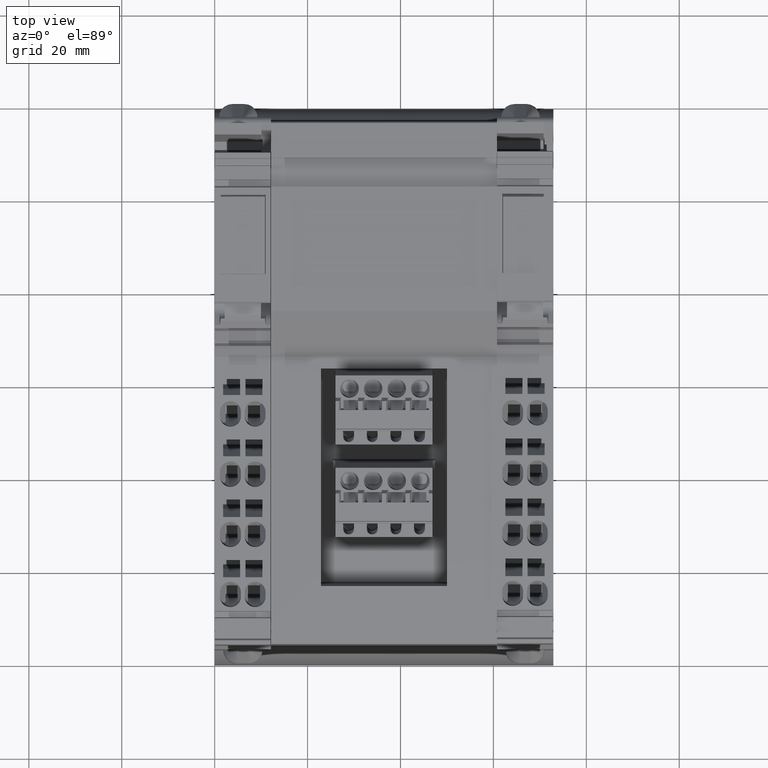
[diagram: clean part render]
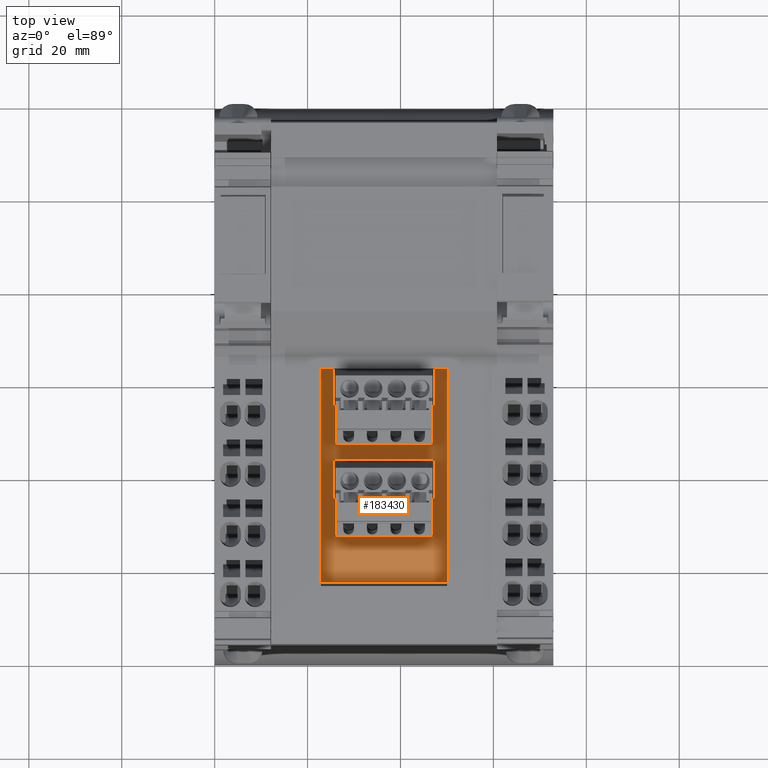
[diagram: same view with one face highlighted and labeled with its STEP entity id]
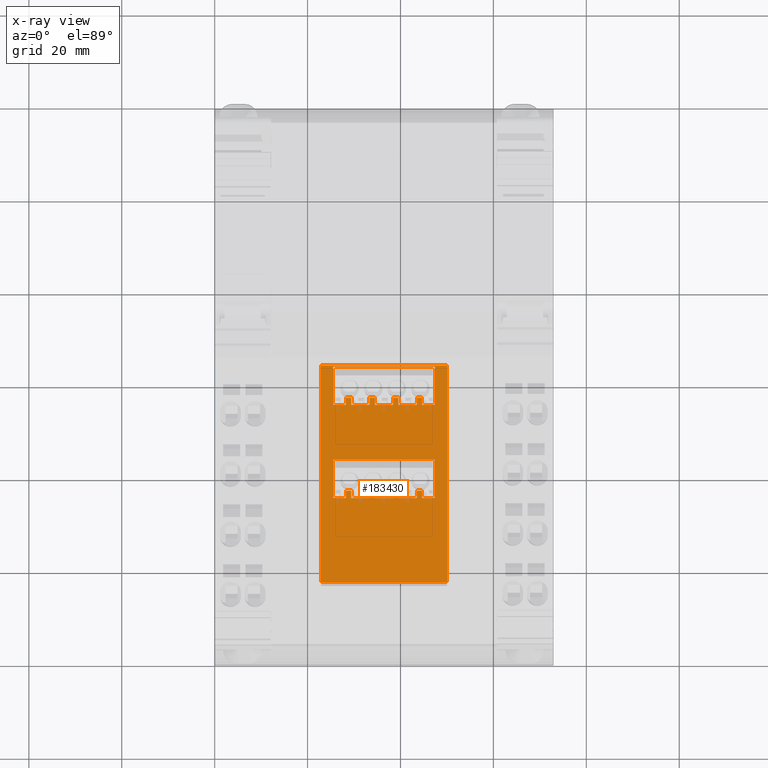
[diagram: x-ray of the same camera — body ghosted, the highlighted face saturated]
A machine part, top view. The second image highlights one B-rep face of the part: STEP entity #183430.
The next image is the same camera in x-ray: the body ghosted, the highlighted face saturated — about 1% of this face is hidden behind the body in this view.
In plain terms, the highlighted planar face has unit normal (-0, -0.1279, 0.9918).
Its self-contained STEP definition (entity closure, byte-faithful):
#167700=CARTESIAN_POINT('',(-64.6547814480056,-66.7761858057865,
15.4444377541362));
#167710=VERTEX_POINT('',#167700);
#167860=CARTESIAN_POINT('',(-64.6547814480056,-66.7761858057865,
19.3955624258869));
#167870=VERTEX_POINT('',#167860);
#167900=CARTESIAN_POINT('',(-64.6547814480056,-66.7761858057865,32.55));
#167910=DIRECTION('',(8.08889870633454E-16,1.04353088858576E-16,1.));
#167920=VECTOR('',#167910,1.);
#167930=LINE('',#167900,#167920);
#167940=EDGE_CURVE('',#167710,#167870,#167930,.T.);
#168110=CARTESIAN_POINT('',(0.0062482952954781,-58.4344097155437,
25.64943290838));
#168120=DIRECTION('',(0.991780710985145,0.127947430693632,
0.000690142520834572));
#168130=VECTOR('',#168120,1.);
#168140=LINE('',#168110,#168130);
#168150=CARTESIAN_POINT('',(-66.2168417217645,-66.9777037385335,
25.6033507757315));
#168160=VERTEX_POINT('',#168150);
#168170=CARTESIAN_POINT('',(-64.6547814480056,-66.7761858057865,
25.6044377541362));
#168180=VERTEX_POINT('',#168170);
#168190=EDGE_CURVE('',#168160,#168180,#168140,.T.);
#168580=CARTESIAN_POINT('',(0.0062482952954781,-58.4344097155437,
20.56943290838));
#168590=DIRECTION('',(0.991780710985145,0.127947430693632,
0.000690142520834572));
#168600=VECTOR('',#168590,1.);
#168610=LINE('',#168580,#168600);
#168620=CARTESIAN_POINT('',(-66.2168417217646,-66.9777037385335,
20.5233507757315));
#168630=VERTEX_POINT('',#168620);
#168640=CARTESIAN_POINT('',(-64.6547814480056,-66.7761858057865,
20.5244377541362));
#168650=VERTEX_POINT('',#168640);
#168660=EDGE_CURVE('',#168630,#168650,#168610,.T.);
#169190=CARTESIAN_POINT('',(-66.2168417217645,-66.9777037385335,
14.3166494042916));
#169200=VERTEX_POINT('',#169190);
#169230=CARTESIAN_POINT('',(0.0062482952954781,-58.4344097155437,
14.270567271643));
#169240=DIRECTION('',(-0.991780710985145,-0.127947430693632,
0.000690142520836271));
#169250=VECTOR('',#169240,1.);
#169260=LINE('',#169230,#169250);
#169270=CARTESIAN_POINT('',(-64.6547814480056,-66.7761858057865,
14.3155624258869));
#169280=VERTEX_POINT('',#169270);
#169290=EDGE_CURVE('',#169280,#169200,#169260,.T.);
#169770=CARTESIAN_POINT('',(-72.93618035968,-67.84455071908,
11.5600000900115));
#169780=VERTEX_POINT('',#169770);
#169810=CARTESIAN_POINT('',(-72.93618035968,-67.84455071908,32.55));
#169820=DIRECTION('',(8.08889870633454E-16,1.04353088858576E-16,1.));
#169830=VECTOR('',#169820,1.);
#169840=LINE('',#169810,#169830);
#169850=CARTESIAN_POINT('',(-72.93618035968,-67.84455071908,
33.4400000900115));
#169860=VERTEX_POINT('',#169850);
#169870=EDGE_CURVE('',#169780,#169860,#169840,.T.);
#170300=CARTESIAN_POINT('',(-66.2168417217645,-66.9777037385335,
19.3966494042916));
#170310=VERTEX_POINT('',#170300);
#170340=CARTESIAN_POINT('',(0.0062482952954781,-58.4344097155437,
19.350567271643));
#170350=DIRECTION('',(-0.991780710985145,-0.127947430693632,
0.000690142520836271));
#170360=VECTOR('',#170350,1.);
#170370=LINE('',#170340,#170360);
#170380=EDGE_CURVE('',#167870,#170310,#170370,.T.);
#172110=CARTESIAN_POINT('',(0.0062482952954781,-58.4344097155437,
33.4400000900115));
#172120=DIRECTION('',(0.991780947176169,0.127947461164112,
-7.91033905045424E-16));
#172130=VECTOR('',#172120,1.);
#172140=LINE('',#172110,#172130);
#172150=CARTESIAN_POINT('',(-64.6547814480056,-66.7761858057865,
33.4400000900115));
#172160=VERTEX_POINT('',#172150);
#172170=EDGE_CURVE('',#169860,#172160,#172140,.T.);
#172540=CARTESIAN_POINT('',(-66.2168417217645,-66.9777037385335,
24.4766494042916));
#172550=VERTEX_POINT('',#172540);
#172580=CARTESIAN_POINT('',(0.0062482952954781,-58.4344097155437,
24.430567271643));
#172590=DIRECTION('',(-0.991780710985145,-0.127947430693632,
0.000690142520836271));
#172600=VECTOR('',#172590,1.);
#172610=LINE('',#172580,#172600);
#172620=CARTESIAN_POINT('',(-64.6547814480056,-66.7761858057865,
24.4755624258869));
#172630=VERTEX_POINT('',#172620);
#172640=EDGE_CURVE('',#172630,#172550,#172610,.T.);
#173530=CARTESIAN_POINT('',(0.0062482952954781,-58.4344097155437,
30.72943290838));
#173540=DIRECTION('',(0.991780710985145,0.127947430693632,
0.000690142520834572));
#173550=VECTOR('',#173540,1.);
#173560=LINE('',#173530,#173550);
#173570=CARTESIAN_POINT('',(-66.2168417217645,-66.9777037385335,
30.6833507757315));
#173580=VERTEX_POINT('',#173570);
#173590=CARTESIAN_POINT('',(-64.6547814480056,-66.7761858057865,
30.6844377541362));
#173600=VERTEX_POINT('',#173590);
#173610=EDGE_CURVE('',#173580,#173600,#173560,.T.);
#173970=CARTESIAN_POINT('',(-64.6547814480056,-66.7761858057865,
11.5600000900115));
#173980=VERTEX_POINT('',#173970);
#174010=CARTESIAN_POINT('',(0.0062482952954781,-58.4344097155437,
11.5600000900115));
#174020=DIRECTION('',(0.991780947176169,0.127947461164112,
-7.91033905045424E-16));
#174030=VECTOR('',#174020,1.);
#174040=LINE('',#174010,#174030);
#174050=EDGE_CURVE('',#169780,#173980,#174040,.T.);
#174170=EDGE_CURVE('',#173980,#169280,#167930,.T.);
#174320=CARTESIAN_POINT('',(-64.6547814480056,-66.7761858057865,
29.5555624258869));
#174330=VERTEX_POINT('',#174320);
#174340=EDGE_CURVE('',#168180,#174330,#167930,.T.);
#175640=EDGE_CURVE('',#168650,#172630,#167930,.T.);
#175980=EDGE_CURVE('',#173600,#172160,#167930,.T.);
#176710=CARTESIAN_POINT('',(-66.2168417217645,-66.9777037385335,32.55));
#176720=DIRECTION('',(-8.08889870633454E-16,-1.04353088858576E-16,-1.));
#176730=VECTOR('',#176720,1.);
#176740=LINE('',#176710,#176730);
#176750=CARTESIAN_POINT('',(-66.2168417217645,-66.9777037385335,
29.5566494042916));
#176760=VERTEX_POINT('',#176750);
#176770=EDGE_CURVE('',#173580,#176760,#176740,.T.);
#176870=EDGE_CURVE('',#168160,#172550,#176740,.T.);
#176970=EDGE_CURVE('',#168630,#170310,#176740,.T.);
#177120=CARTESIAN_POINT('',(-66.2168417217646,-66.9777037385335,
15.4433507757315));
#177130=VERTEX_POINT('',#177120);
#177160=EDGE_CURVE('',#177130,#169200,#176740,.T.);
#177620=CARTESIAN_POINT('',(0.0062482952954781,-58.4344097155437,
29.510567271643));
#177630=DIRECTION('',(-0.991780710985145,-0.127947430693632,
0.000690142520836271));
#177640=VECTOR('',#177630,1.);
#177650=LINE('',#177620,#177640);
#177660=EDGE_CURVE('',#174330,#176760,#177650,.T.);
#178230=CARTESIAN_POINT('',(-73.1442997239359,-67.8713997368509,
8.94601255730046));
#178240=VERTEX_POINT('',#178230);
#178270=CARTESIAN_POINT('',(0.0062482952954781,-58.4344097155437,
8.94601255730046));
#178280=DIRECTION('',(0.991780947176169,0.127947461164112,
1.03154561898934E-45));
#178290=VECTOR('',#178280,1.);
#178300=LINE('',#178270,#178290);
#178310=CARTESIAN_POINT('',(-26.6316494272199,-61.87090584309,
8.94601255730046));
#178320=VERTEX_POINT('',#178310);
#178330=EDGE_CURVE('',#178240,#178320,#178300,.T.);
#178950=CARTESIAN_POINT('',(-26.6316493774359,-61.8709058366675,32.55));
#178960=DIRECTION('',(4.43421172533961E-19,5.72047823802933E-20,1.));
#178970=VECTOR('',#178960,1.);
#178980=LINE('',#178950,#178970);
#178990=CARTESIAN_POINT('',(-26.6316493774359,-61.8709058366675,
36.0539874997528));
#179000=VERTEX_POINT('',#178990);
#179010=EDGE_CURVE('',#178320,#179000,#178980,.T.);
#179320=CARTESIAN_POINT('',(0.0062482952954781,-58.4344097155437,
15.48943290838));
#179330=DIRECTION('',(0.991780710985145,0.127947430693632,
0.000690142520834572));
#179340=VECTOR('',#179330,1.);
#179350=LINE('',#179320,#179340);
#179360=EDGE_CURVE('',#177130,#167710,#179350,.T.);
#179570=CARTESIAN_POINT('',(0.0062482952954781,-58.4344097155437,
36.0539874997528));
#179580=DIRECTION('',(0.991780947176169,0.127947461164112,
1.03154561898934E-45));
#179590=VECTOR('',#179580,1.);
#179600=LINE('',#179570,#179590);
#179610=CARTESIAN_POINT('',(-73.1442997239359,-67.8713997368509,
36.0539874997528));
#179620=VERTEX_POINT('',#179610);
#179630=EDGE_CURVE('',#179620,#179000,#179600,.T.);
#181600=CARTESIAN_POINT('',(-73.1442997239358,-67.8713997368509,32.55));
#181610=DIRECTION('',(-4.43421172533961E-19,-5.72047823802934E-20,-1.));
#181620=VECTOR('',#181610,1.);
#181630=LINE('',#181600,#181620);
#181640=EDGE_CURVE('',#179620,#178240,#181630,.T.);
#181760=CARTESIAN_POINT('',(-50.2846266335762,-64.9223239925742,
22.5000000000113));
#181770=DIRECTION('',(0.127947461164112,-0.991780947176169,
-4.81482486095478E-35));
#181780=DIRECTION('',(3.7631265342413E-34,3.77064121249237E-62,1.));
#181790=AXIS2_PLACEMENT_3D('',#181760,#181770,#181780);
#181800=PLANE('',#181790);
#181810=CARTESIAN_POINT('',(-44.6703277868989,-64.1980357455633,32.55));
#181820=DIRECTION('',(-8.08889870633454E-16,-1.04353088858576E-16,-1.));
#181830=VECTOR('',#181820,1.);
#181840=LINE('',#181810,#181830);
#181850=CARTESIAN_POINT('',(-44.670327786899,-64.1980357455633,
24.461656003757));
#181860=VERTEX_POINT('',#181850);
#181870=CARTESIAN_POINT('',(-44.670327786899,-64.1980357455633,
20.538344176266));
#181880=VERTEX_POINT('',#181870);
#181890=EDGE_CURVE('',#181860,#181880,#181840,.T.);
#181900=ORIENTED_EDGE('',*,*,#181890,.T.);
#181910=CARTESIAN_POINT('',(0.0062482952954781,-58.4344097155437,
24.430567271643));
#181920=DIRECTION('',(-0.991780710985145,-0.127947430693632,
0.000690142520836271));
#181930=VECTOR('',#181920,1.);
#181940=LINE('',#181910,#181930);
#181950=CARTESIAN_POINT('',(-46.2323880606579,-64.3995536783103,
24.4627429821617));
#181960=VERTEX_POINT('',#181950);
#181970=EDGE_CURVE('',#181860,#181960,#181940,.T.);
#181980=ORIENTED_EDGE('',*,*,#181970,.F.);
#181990=CARTESIAN_POINT('',(-46.2323880606579,-64.3995536783103,32.55));
#182000=DIRECTION('',(-8.08889870633454E-16,-1.04353088858576E-16,-1.));
#182010=VECTOR('',#182000,1.);
#182020=LINE('',#181990,#182010);
#182030=CARTESIAN_POINT('',(-46.2323880606579,-64.3995536783103,
25.6172571978613));
#182040=VERTEX_POINT('',#182030);
#182050=EDGE_CURVE('',#182040,#181960,#182020,.T.);
#182060=ORIENTED_EDGE('',*,*,#182050,.T.);
#182070=CARTESIAN_POINT('',(0.0062482952954781,-58.4344097155437,
25.64943290838));
#182080=DIRECTION('',(0.991780710985145,0.127947430693632,
0.000690142520834572));
#182090=VECTOR('',#182080,1.);
#182100=LINE('',#182070,#182090);
#182110=CARTESIAN_POINT('',(-44.6703277868989,-64.1980357455633,
25.618344176266));
#182120=VERTEX_POINT('',#182110);
#182130=EDGE_CURVE('',#182040,#182120,#182100,.T.);
#182140=ORIENTED_EDGE('',*,*,#182130,.F.);
#182150=CARTESIAN_POINT('',(-44.6703277868989,-64.1980357455633,
29.541656003757));
#182160=VERTEX_POINT('',#182150);
#182170=EDGE_CURVE('',#182160,#182120,#181840,.T.);
#182180=ORIENTED_EDGE('',*,*,#182170,.T.);
#182190=CARTESIAN_POINT('',(0.0062482952954781,-58.4344097155437,
29.510567271643));
#182200=DIRECTION('',(-0.991780710985145,-0.127947430693632,
0.000690142520836271));
#182210=VECTOR('',#182200,1.);
#182220=LINE('',#182190,#182210);
#182230=CARTESIAN_POINT('',(-46.2323880606579,-64.3995536783103,
29.5427429821617));
#182240=VERTEX_POINT('',#182230);
#182250=EDGE_CURVE('',#182160,#182240,#182220,.T.);
#182260=ORIENTED_EDGE('',*,*,#182250,.F.);
#182270=CARTESIAN_POINT('',(-46.2323880606579,-64.3995536783103,
30.6972571978613));
#182280=VERTEX_POINT('',#182270);
#182290=EDGE_CURVE('',#182280,#182240,#182020,.T.);
#182300=ORIENTED_EDGE('',*,*,#182290,.T.);
#182310=CARTESIAN_POINT('',(0.0062482952954781,-58.4344097155437,
30.72943290838));
#182320=DIRECTION('',(0.991780710985145,0.127947430693632,
0.000690142520834572));
#182330=VECTOR('',#182320,1.);
#182340=LINE('',#182310,#182330);
#182350=CARTESIAN_POINT('',(-44.6703277868989,-64.1980357455633,
30.698344176266));
#182360=VERTEX_POINT('',#182350);
#182370=EDGE_CURVE('',#182280,#182360,#182340,.T.);
#182380=ORIENTED_EDGE('',*,*,#182370,.F.);
#182390=CARTESIAN_POINT('',(-44.6703277868989,-64.1980357455633,
33.4400000900115));
#182400=VERTEX_POINT('',#182390);
#182410=EDGE_CURVE('',#182400,#182360,#181840,.T.);
#182420=ORIENTED_EDGE('',*,*,#182410,.T.);
#182430=CARTESIAN_POINT('',(0.0062482952954781,-58.4344097155437,
33.4400000900115));
#182440=DIRECTION('',(-0.991780947176169,-0.127947461164112,
7.91033905045424E-16));
#182450=VECTOR('',#182440,1.);
#182460=LINE('',#182430,#182450);
#182470=CARTESIAN_POINT('',(-53.0656060068034,-65.2810919759351,
33.4400000900115));
#182480=VERTEX_POINT('',#182470);
#182490=EDGE_CURVE('',#182400,#182480,#182460,.T.);
#182500=ORIENTED_EDGE('',*,*,#182490,.F.);
#182510=CARTESIAN_POINT('',(-53.0656060068034,-65.2810919759351,32.55));
#182520=DIRECTION('',(8.03929223570033E-16,1.03713126778942E-16,1.));
#182530=VECTOR('',#182520,1.);
#182540=LINE('',#182510,#182530);
#182550=CARTESIAN_POINT('',(-53.0656060068035,-65.2810919759351,
11.5600000900115));
#182560=VERTEX_POINT('',#182550);
#182570=EDGE_CURVE('',#182560,#182480,#182540,.T.);
#182580=ORIENTED_EDGE('',*,*,#182570,.T.);
#182590=CARTESIAN_POINT('',(0.0062482952954781,-58.4344097155437,
11.5600000900115));
#182600=DIRECTION('',(-0.991780947176169,-0.127947461164112,
7.91033905045424E-16));
#182610=VECTOR('',#182600,1.);
#182620=LINE('',#182590,#182610);
#182630=CARTESIAN_POINT('',(-44.670327786899,-64.1980357455633,
11.5600000900115));
#182640=VERTEX_POINT('',#182630);
#182650=EDGE_CURVE('',#182640,#182560,#182620,.T.);
#182660=ORIENTED_EDGE('',*,*,#182650,.T.);
#182670=CARTESIAN_POINT('',(-44.670327786899,-64.1980357455633,
14.301656003757));
#182680=VERTEX_POINT('',#182670);
#182690=EDGE_CURVE('',#182680,#182640,#181840,.T.);
#182700=ORIENTED_EDGE('',*,*,#182690,.T.);
#182710=CARTESIAN_POINT('',(0.0062482952954781,-58.4344097155437,
14.270567271643));
#182720=DIRECTION('',(-0.991780710985145,-0.127947430693632,
0.000690142520836271));
#182730=VECTOR('',#182720,1.);
#182740=LINE('',#182710,#182730);
#182750=CARTESIAN_POINT('',(-46.2323880606579,-64.3995536783103,
14.3027429821617));
#182760=VERTEX_POINT('',#182750);
#182770=EDGE_CURVE('',#182680,#182760,#182740,.T.);
#182780=ORIENTED_EDGE('',*,*,#182770,.F.);
#182790=CARTESIAN_POINT('',(-46.2323880606579,-64.3995536783103,
15.4572571978613));
#182800=VERTEX_POINT('',#182790);
#182810=EDGE_CURVE('',#182800,#182760,#182020,.T.);
#182820=ORIENTED_EDGE('',*,*,#182810,.T.);
#182830=CARTESIAN_POINT('',(0.0062482952954781,-58.4344097155437,
15.48943290838));
#182840=DIRECTION('',(0.991780710985145,0.127947430693632,
0.000690142520834572));
#182850=VECTOR('',#182840,1.);
#182860=LINE('',#182830,#182850);
#182870=CARTESIAN_POINT('',(-44.670327786899,-64.1980357455633,
15.458344176266));
#182880=VERTEX_POINT('',#182870);
#182890=EDGE_CURVE('',#182800,#182880,#182860,.T.);
#182900=ORIENTED_EDGE('',*,*,#182890,.F.);
#182910=CARTESIAN_POINT('',(-44.6703277868989,-64.1980357455633,
19.381656003757));
#182920=VERTEX_POINT('',#182910);
#182930=EDGE_CURVE('',#182920,#182880,#181840,.T.);
#182940=ORIENTED_EDGE('',*,*,#182930,.T.);
#182950=CARTESIAN_POINT('',(0.0062482952954781,-58.4344097155437,
19.350567271643));
#182960=DIRECTION('',(-0.991780710985145,-0.127947430693632,
0.000690142520836271));
#182970=VECTOR('',#182960,1.);
#182980=LINE('',#182950,#182970);
#182990=CARTESIAN_POINT('',(-46.2323880606579,-64.3995536783103,
19.3827429821617));
#183000=VERTEX_POINT('',#182990);
#183010=EDGE_CURVE('',#182920,#183000,#182980,.T.);
#183020=ORIENTED_EDGE('',*,*,#183010,.F.);
#183030=CARTESIAN_POINT('',(-46.2323880606579,-64.3995536783103,
20.5372571978613));
#183040=VERTEX_POINT('',#183030);
#183050=EDGE_CURVE('',#183040,#183000,#182020,.T.);
#183060=ORIENTED_EDGE('',*,*,#183050,.T.);
#183070=CARTESIAN_POINT('',(0.0062482952954781,-58.4344097155437,
20.56943290838));
#183080=DIRECTION('',(0.991780710985145,0.127947430693632,
0.000690142520834572));
#183090=VECTOR('',#183080,1.);
#183100=LINE('',#183070,#183090);
#183110=EDGE_CURVE('',#183040,#181880,#183100,.T.);
#183120=ORIENTED_EDGE('',*,*,#183110,.F.);
#183130=EDGE_LOOP('',(#183120,#183060,#183020,#182940,#182900,#182820,
#182780,#182700,#182660,#182580,#182500,#182420,#182380,#182300,#182260,
#182180,#182140,#182060,#181980,#181900));
#183140=FACE_BOUND('',#183130,.T.);
#183150=ORIENTED_EDGE('',*,*,#172170,.T.);
#183160=ORIENTED_EDGE('',*,*,#169870,.T.);
#183170=ORIENTED_EDGE('',*,*,#174050,.F.);
#183180=ORIENTED_EDGE('',*,*,#174170,.F.);
#183190=ORIENTED_EDGE('',*,*,#169290,.F.);
#183200=ORIENTED_EDGE('',*,*,#177160,.T.);
#183210=ORIENTED_EDGE('',*,*,#179360,.F.);
#183220=ORIENTED_EDGE('',*,*,#167940,.F.);
#183230=ORIENTED_EDGE('',*,*,#170380,.F.);
#183240=ORIENTED_EDGE('',*,*,#176970,.T.);
#183250=ORIENTED_EDGE('',*,*,#168660,.F.);
#183260=ORIENTED_EDGE('',*,*,#175640,.F.);
#183270=ORIENTED_EDGE('',*,*,#172640,.F.);
#183280=ORIENTED_EDGE('',*,*,#176870,.T.);
#183290=ORIENTED_EDGE('',*,*,#168190,.F.);
#183300=ORIENTED_EDGE('',*,*,#174340,.F.);
#183310=ORIENTED_EDGE('',*,*,#177660,.F.);
#183320=ORIENTED_EDGE('',*,*,#176770,.T.);
#183330=ORIENTED_EDGE('',*,*,#173610,.F.);
#183340=ORIENTED_EDGE('',*,*,#175980,.F.);
#183350=EDGE_LOOP('',(#183340,#183330,#183320,#183310,#183300,#183290,
#183280,#183270,#183260,#183250,#183240,#183230,#183220,#183210,#183200,
#183190,#183180,#183170,#183160,#183150));
#183360=FACE_BOUND('',#183350,.T.);
#183370=ORIENTED_EDGE('',*,*,#179010,.T.);
#183380=ORIENTED_EDGE('',*,*,#178330,.T.);
#183390=ORIENTED_EDGE('',*,*,#181640,.T.);
#183400=ORIENTED_EDGE('',*,*,#179630,.F.);
#183410=EDGE_LOOP('',(#183400,#183390,#183380,#183370));
#183420=FACE_OUTER_BOUND('',#183410,.T.);
#183430=ADVANCED_FACE('',(#183140,#183360,#183420),#181800,.T.);